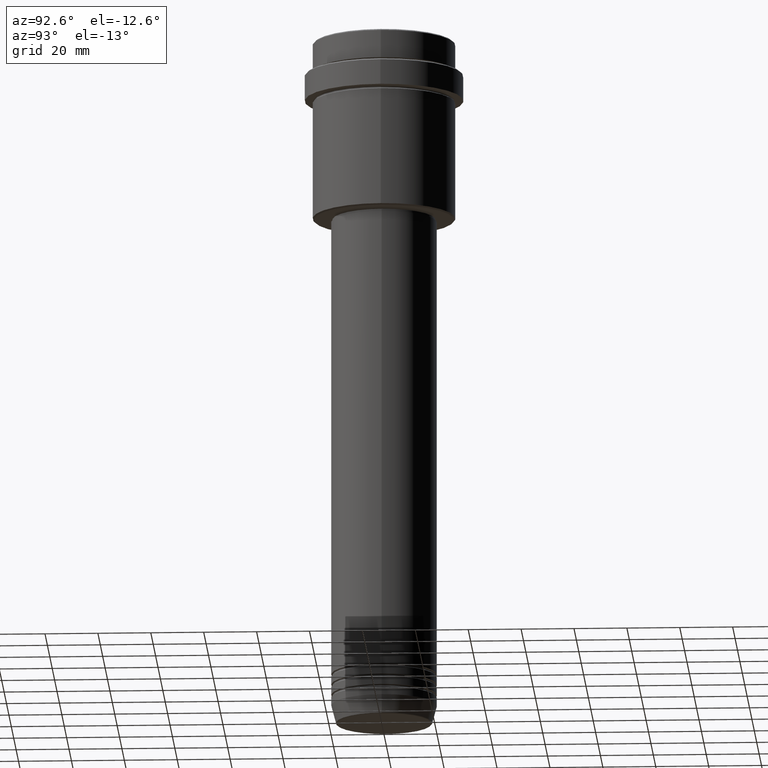
[diagram: clean part render]
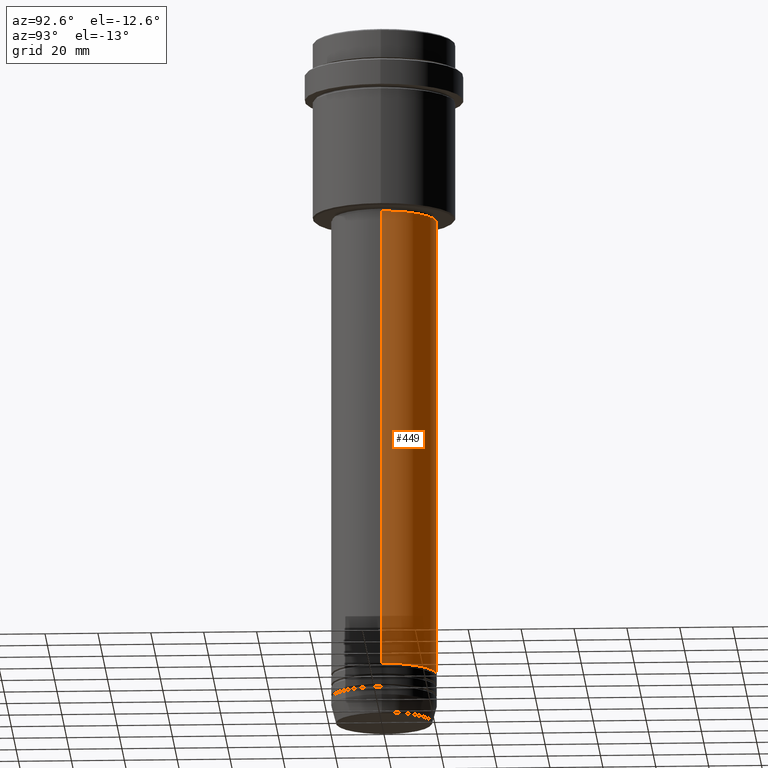
[diagram: same view with one face highlighted and labeled with its STEP entity id]
A machine part, auxiliary view. The second image highlights one B-rep face of the part: STEP entity #449.
In plain terms, the highlighted cylindrical surface (partial cylindrical patch) has radius 20 mm, axis along (-0, -0, 1).
Its self-contained STEP definition (entity closure, byte-faithful):
#18 = ORIENTED_EDGE ( 'NONE', *, *, #336, .T. ) ;
#40 = FACE_OUTER_BOUND ( 'NONE', #735, .T. ) ;
#76 = DIRECTION ( 'NONE',  ( 1.000000000000000000, 0.000000000000000000, 0.000000000000000000 ) ) ;
#82 = CARTESIAN_POINT ( 'NONE',  ( -20.00000000000000000, 2.449293598294706513E-15, -243.9999999999998863 ) ) ;
#134 = CYLINDRICAL_SURFACE ( 'NONE', #900, 19.99999999999999645 ) ;
#237 = DIRECTION ( 'NONE',  ( 1.000000000000000000, 0.000000000000000000, 0.000000000000000000 ) ) ;
#277 = ORIENTED_EDGE ( 'NONE', *, *, #1238, .F. ) ;
#278 = CARTESIAN_POINT ( 'NONE',  ( 20.00000000000000000, 0.000000000000000000, -243.9999999999998863 ) ) ;
#315 = CIRCLE ( 'NONE', #617, 20.00000000000000000 ) ;
#320 = EDGE_CURVE ( 'NONE', #1217, #969, #987, .T. ) ;
#330 = ORIENTED_EDGE ( 'NONE', *, *, #320, .T. ) ;
#336 = EDGE_CURVE ( 'NONE', #896, #1217, #315, .T. ) ;
#351 = CARTESIAN_POINT ( 'NONE',  ( 0.000000000000000000, 0.000000000000000000, -243.9999999999998863 ) ) ;
#373 = DIRECTION ( 'NONE',  ( -0.000000000000000000, -0.000000000000000000, 1.000000000000000000 ) ) ;
#414 = DIRECTION ( 'NONE',  ( -0.000000000000000000, -0.000000000000000000, 1.000000000000000000 ) ) ;
#417 = CARTESIAN_POINT ( 'NONE',  ( -19.99999999999999645, 2.449293598294706119E-15, -69.00000000000000000 ) ) ;
#442 = CARTESIAN_POINT ( 'NONE',  ( -19.99999999999999645, 2.449293598294706119E-15, 0.000000000000000000 ) ) ;
#449 = ADVANCED_FACE ( 'NONE', ( #40 ), #134, .T. ) ;
#473 = DIRECTION ( 'NONE',  ( -0.000000000000000000, -0.000000000000000000, 1.000000000000000000 ) ) ;
#582 = VECTOR ( 'NONE', #892, 1000.000000000000000 ) ;
#585 = CARTESIAN_POINT ( 'NONE',  ( 0.000000000000000000, 0.000000000000000000, 0.000000000000000000 ) ) ;
#608 = CARTESIAN_POINT ( 'NONE',  ( 19.99999999999999645, 0.000000000000000000, 0.000000000000000000 ) ) ;
#617 = AXIS2_PLACEMENT_3D ( 'NONE', #351, #1124, #237 ) ;
#735 = EDGE_LOOP ( 'NONE', ( #18, #330, #277, #1025 ) ) ;
#881 = AXIS2_PLACEMENT_3D ( 'NONE', #1401, #414, #76 ) ;
#892 = DIRECTION ( 'NONE',  ( -0.000000000000000000, -0.000000000000000000, 1.000000000000000000 ) ) ;
#896 = VERTEX_POINT ( 'NONE', #278 ) ;
#900 = AXIS2_PLACEMENT_3D ( 'NONE', #585, #473, #916 ) ;
#910 = VERTEX_POINT ( 'NONE', #1270 ) ;
#916 = DIRECTION ( 'NONE',  ( 1.000000000000000000, 0.000000000000000000, 0.000000000000000000 ) ) ;
#969 = VERTEX_POINT ( 'NONE', #417 ) ;
#987 = LINE ( 'NONE', #442, #582 ) ;
#1025 = ORIENTED_EDGE ( 'NONE', *, *, #1374, .F. ) ;
#1081 = VECTOR ( 'NONE', #373, 1000.000000000000000 ) ;
#1124 = DIRECTION ( 'NONE',  ( -0.000000000000000000, -0.000000000000000000, 1.000000000000000000 ) ) ;
#1205 = CIRCLE ( 'NONE', #881, 19.99999999999999645 ) ;
#1217 = VERTEX_POINT ( 'NONE', #82 ) ;
#1238 = EDGE_CURVE ( 'NONE', #910, #969, #1205, .T. ) ;
#1270 = CARTESIAN_POINT ( 'NONE',  ( 19.99999999999999645, 0.000000000000000000, -69.00000000000000000 ) ) ;
#1362 = LINE ( 'NONE', #608, #1081 ) ;
#1374 = EDGE_CURVE ( 'NONE', #896, #910, #1362, .T. ) ;
#1401 = CARTESIAN_POINT ( 'NONE',  ( 0.000000000000000000, 0.000000000000000000, -69.00000000000000000 ) ) ;